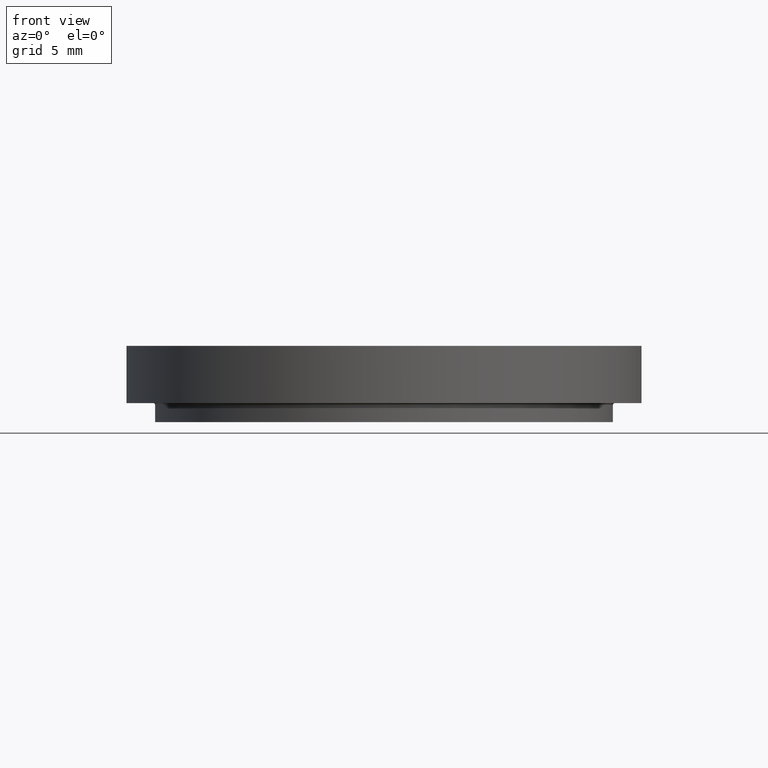
[diagram: clean part render]
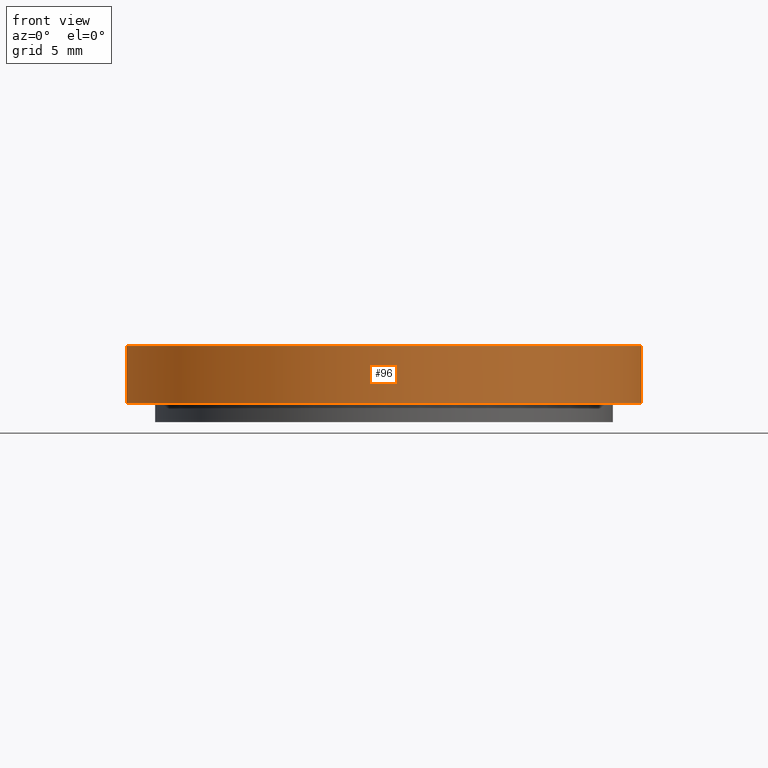
[diagram: same view with one face highlighted and labeled with its STEP entity id]
A machine part, front view. The second image highlights one B-rep face of the part: STEP entity #96.
In plain terms, the highlighted cylindrical surface (bore or boss wall) has radius 13.5 mm, axis along (0, 0, -1).
Its self-contained STEP definition (entity closure, byte-faithful):
#23=CYLINDRICAL_SURFACE('',#123,13.5);
#36=ORIENTED_EDGE('',*,*,#44,.T.);
#37=ORIENTED_EDGE('',*,*,#39,.F.);
#39=EDGE_CURVE('',#46,#46,#53,.T.);
#44=EDGE_CURVE('',#51,#51,#58,.T.);
#46=VERTEX_POINT('',#159);
#51=VERTEX_POINT('',#174);
#53=CIRCLE('',#112,13.5);
#58=CIRCLE('',#122,13.5);
#71=EDGE_LOOP('',(#36));
#72=EDGE_LOOP('',(#37));
#85=FACE_BOUND('',#71,.T.);
#86=FACE_BOUND('',#72,.T.);
#96=ADVANCED_FACE('',(#85,#86),#23,.T.);
#112=AXIS2_PLACEMENT_3D('',#158,#130,#131);
#122=AXIS2_PLACEMENT_3D('',#173,#150,#151);
#123=AXIS2_PLACEMENT_3D('',#175,#152,#153);
#130=DIRECTION('',(0.,0.,1.));
#131=DIRECTION('',(1.,0.,0.));
#150=DIRECTION('',(0.,0.,1.));
#151=DIRECTION('',(1.,0.,0.));
#152=DIRECTION('',(0.,0.,-1.));
#153=DIRECTION('',(1.,0.,0.));
#158=CARTESIAN_POINT('',(0.,0.,4.));
#159=CARTESIAN_POINT('',(13.5,0.,4.));
#173=CARTESIAN_POINT('',(0.,0.,1.));
#174=CARTESIAN_POINT('',(13.5,0.,1.));
#175=CARTESIAN_POINT('',(0.,0.,60.));